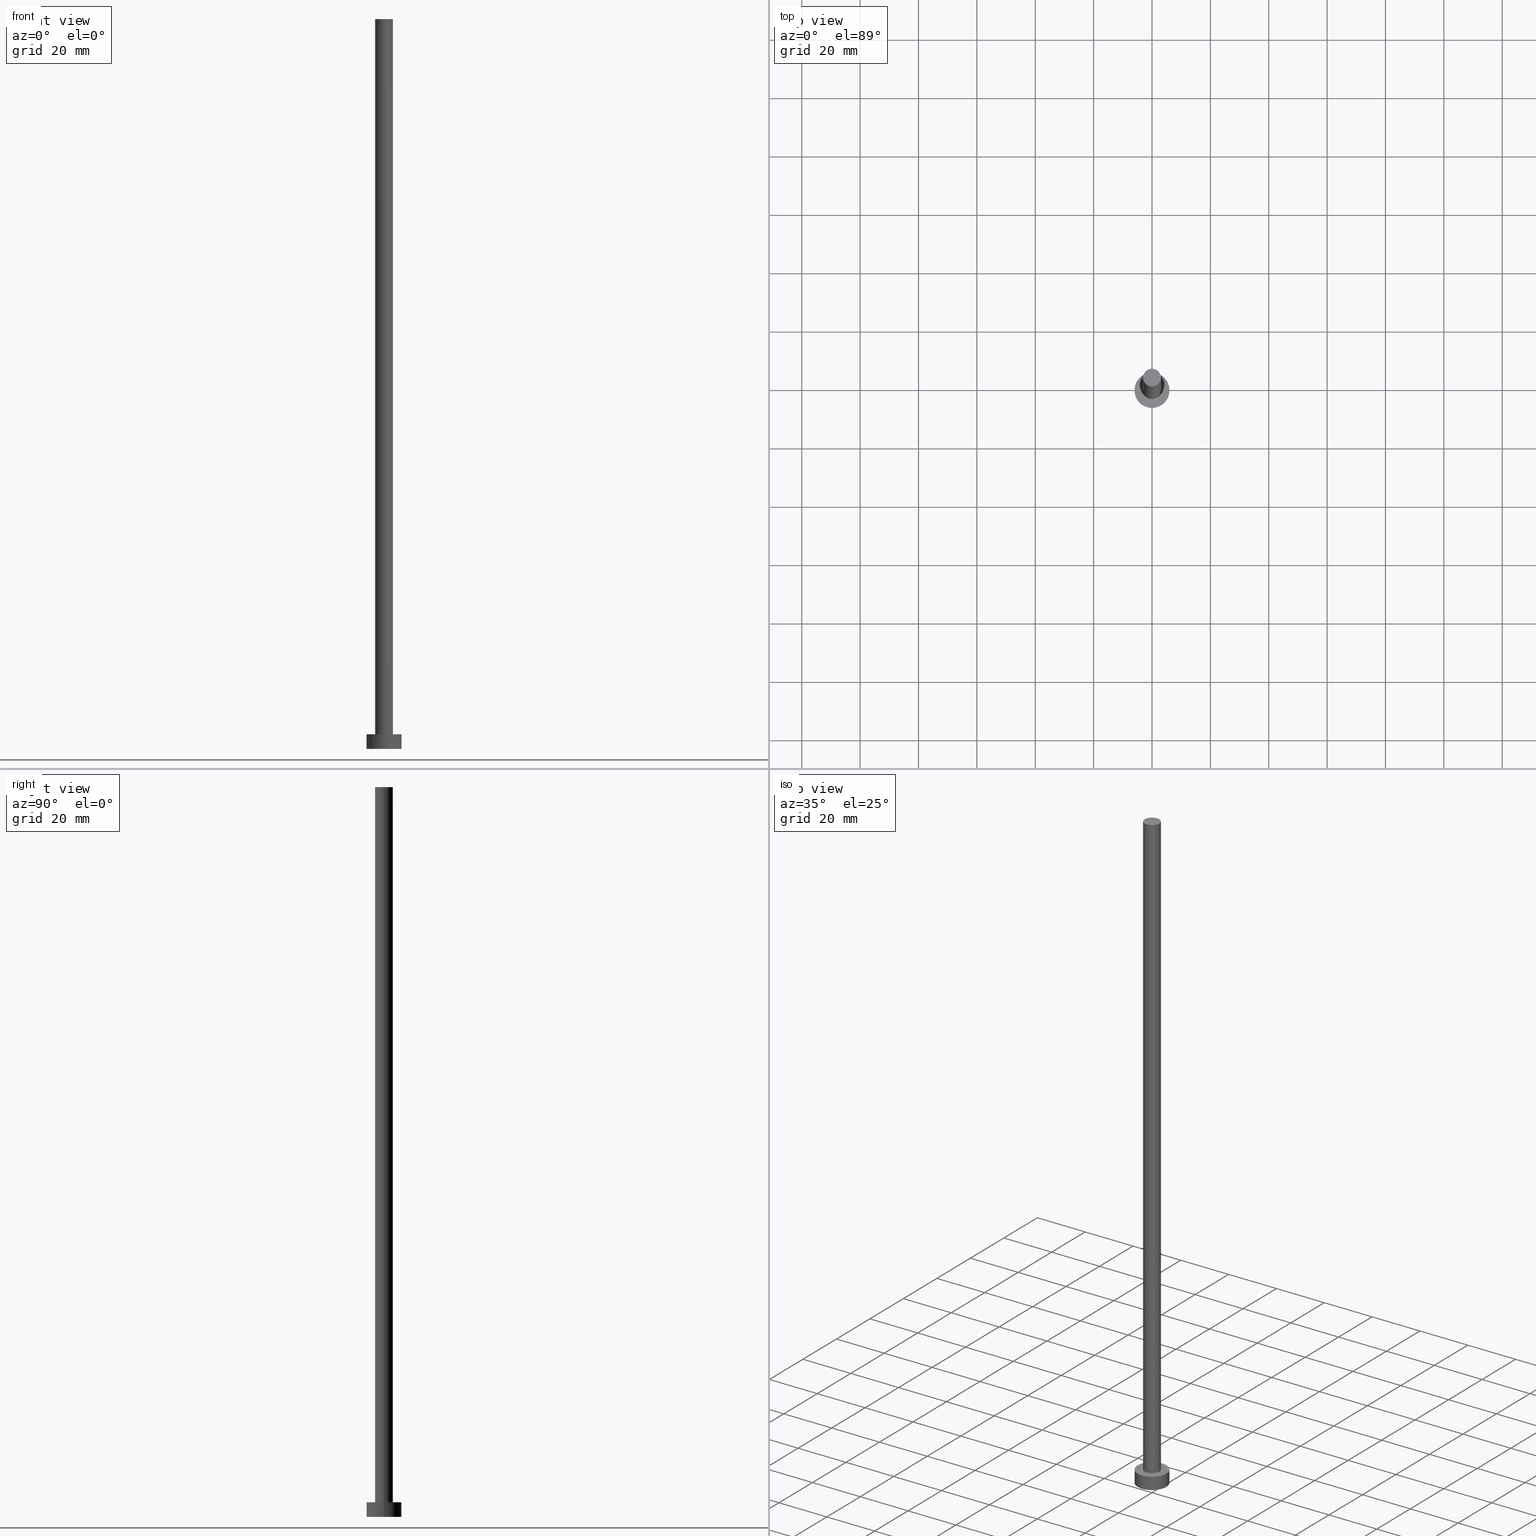
[diagram: canonical four-view strip — front | top / right | iso, engineering-drawing reading convention]
A machine part, canonical four-view strip (front | top / right | iso — engineering-drawing reading convention). The complete STEP part file that produces these views, byte-faithful:
ISO-10303-21;
HEADER;
FILE_DESCRIPTION (( 'STEP AP203' ),
    '1' );
FILE_NAME ('0f8e.STEP',
    '2023-05-24T12:27:42',
    ( '' ),
    ( '' ),
    'SwSTEP 2.0',
    'SolidWorks 2019',
    '' );
FILE_SCHEMA (( 'CONFIG_CONTROL_DESIGN' ));
ENDSEC;

DATA;
#1 = ORIENTED_EDGE ( 'NONE', *, *, #105, .T. ) ;
#2 = PERSON_AND_ORGANIZATION ( #18, #16 ) ;
#3 = AXIS2_PLACEMENT_3D ( 'NONE', #33, #232, #251 ) ;
#4 = APPROVAL ( #125, 'NEUR�EN�' ) ;
#5 = DATE_AND_TIME ( #74, #136 ) ;
#6 = EDGE_LOOP ( 'NONE', ( #236, #47, #102, #163 ) ) ;
#7 = VERTEX_POINT ( 'NONE', #84 ) ;
#8 = CC_DESIGN_PERSON_AND_ORGANIZATION_ASSIGNMENT ( #145, #160, ( #63 ) ) ;
#9 = CIRCLE ( 'NONE', #66, 6.000000000000000888 ) ;
#10 = VERTEX_POINT ( 'NONE', #61 ) ;
#11 = ORIENTED_EDGE ( 'NONE', *, *, #77, .F. ) ;
#12 = APPROVAL_PERSON_ORGANIZATION ( #237, #4, #100 ) ;
#13 = DIRECTION ( 'NONE',  ( 0.000000000000000000, 0.000000000000000000, 1.000000000000000000 ) ) ;
#14 =( LENGTH_UNIT ( ) NAMED_UNIT ( * ) SI_UNIT ( .MILLI., .METRE. ) );
#15 = CARTESIAN_POINT ( 'NONE',  ( 0.000000000000000000, 0.000000000000000000, 0.000000000000000000 ) ) ;
#16 = ORGANIZATION ( 'NEUR�EN�', 'NEUR�EN�', '' ) ;
#17 = FACE_OUTER_BOUND ( 'NONE', #42, .T. ) ;
#18 = PERSON ( 'NEUR�EN�', 'NEUR�EN�', 'NEUR�EN�', ('NEUR�EN�'), ('NEUR�EN�'), ('NEUR�EN�') ) ;
#19 = CC_DESIGN_DATE_AND_TIME_ASSIGNMENT ( #142, #213, ( #98 ) ) ;
#20 = DATE_AND_TIME ( #192, #41 ) ;
#21 = CC_DESIGN_APPROVAL ( #69, ( #63 ) ) ;
#22 = APPROVAL_STATUS ( 'not_yet_approved' ) ;
#23 = PERSON_AND_ORGANIZATION ( #18, #16 ) ;
#24 = PERSON_AND_ORGANIZATION ( #18, #16 ) ;
#25 = CARTESIAN_POINT ( 'NONE',  ( 0.000000000000000000, 0.000000000000000000, 250.0000000000000000 ) ) ;
#26 = PRODUCT_DEFINITION_SHAPE ( 'NONE', 'NONE',  #90 ) ;
#27 = CARTESIAN_POINT ( 'NONE',  ( 3.049999999999999822, 3.735172737399427146E-16, 250.0000000000000000 ) ) ;
#28 = AXIS2_PLACEMENT_3D ( 'NONE', #15, #53, #247 ) ;
#29 = DIRECTION ( 'NONE',  ( 1.000000000000000000, 0.000000000000000000, 0.000000000000000000 ) ) ;
#30 = EDGE_LOOP ( 'NONE', ( #62, #152 ) ) ;
#31 = DIRECTION ( 'NONE',  ( 0.000000000000000000, 0.000000000000000000, 1.000000000000000000 ) ) ;
#32 = CARTESIAN_POINT ( 'NONE',  ( -3.049999999999999822, 0.000000000000000000, 250.0000000000000000 ) ) ;
#33 = CARTESIAN_POINT ( 'NONE',  ( 0.000000000000000000, 0.000000000000000000, 5.000000000000000000 ) ) ;
#34 = DIRECTION ( 'NONE',  ( -0.000000000000000000, -0.000000000000000000, -1.000000000000000000 ) ) ;
#35 = FACE_OUTER_BOUND ( 'NONE', #82, .T. ) ;
#36 = EDGE_CURVE ( 'NONE', #200, #39, #133, .T. ) ;
#37 = APPLICATION_CONTEXT ( 'configuration controlled 3d designs of mechanical parts and assemblies' ) ;
#38 = PERSON_AND_ORGANIZATION ( #18, #16 ) ;
#39 = VERTEX_POINT ( 'NONE', #167 ) ;
#40 = APPLICATION_PROTOCOL_DEFINITION ( 'international standard', 'config_control_design', 1994, #126 ) ;
#41 = LOCAL_TIME ( 14, 27, 42.00000000000000000, #76 ) ;
#42 = EDGE_LOOP ( 'NONE', ( #186, #165 ) ) ;
#43 = ADVANCED_FACE ( 'NONE', ( #164 ), #243, .T. ) ;
#44 = CARTESIAN_POINT ( 'NONE',  ( 0.000000000000000000, 0.000000000000000000, 0.000000000000000000 ) ) ;
#45 = DIRECTION ( 'NONE',  ( 1.000000000000000000, 0.000000000000000000, -0.000000000000000000 ) ) ;
#46 = CC_DESIGN_PERSON_AND_ORGANIZATION_ASSIGNMENT ( #38, #252, ( #80 ) ) ;
#47 = ORIENTED_EDGE ( 'NONE', *, *, #151, .F. ) ;
#48 = ORIENTED_EDGE ( 'NONE', *, *, #59, .T. ) ;
#49 = LINE ( 'NONE', #189, #109 ) ;
#50 = DIRECTION ( 'NONE',  ( -1.000000000000000000, 0.000000000000000000, 0.000000000000000000 ) ) ;
#51 = CYLINDRICAL_SURFACE ( 'NONE', #171, 6.000000000000000888 ) ;
#52 = CC_DESIGN_APPROVAL ( #246, ( #98 ) ) ;
#53 = DIRECTION ( 'NONE',  ( 0.000000000000000000, 0.000000000000000000, 1.000000000000000000 ) ) ;
#54 = CALENDAR_DATE ( 2023, 24, 5 ) ;
#55 = COORDINATED_UNIVERSAL_TIME_OFFSET ( 1, 0, .AHEAD. ) ;
#56 = APPROVAL_ROLE ( '' ) ;
#57 = UNCERTAINTY_MEASURE_WITH_UNIT (LENGTH_MEASURE( 1.000000000000000082E-05 ), #14, 'distance_accuracy_value', 'NONE');
#58 = VERTEX_POINT ( 'NONE', #199 ) ;
#59 = EDGE_CURVE ( 'NONE', #58, #214, #75, .T. ) ;
#60 = EDGE_LOOP ( 'NONE', ( #11, #127, #222, #132 ) ) ;
#61 = CARTESIAN_POINT ( 'NONE',  ( -3.049999999999999822, 0.000000000000000000, 5.000000000000000000 ) ) ;
#62 = ORIENTED_EDGE ( 'NONE', *, *, #151, .T. ) ;
#63 = PRODUCT_DEFINITION_FORMATION_WITH_SPECIFIED_SOURCE ( 'LIBOVOLN�', '', #80, .NOT_KNOWN. ) ;
#64 = ADVANCED_BREP_SHAPE_REPRESENTATION ( '0f8e', ( #85, #131 ), #206 ) ;
#65 = DIRECTION ( 'NONE',  ( -0.000000000000000000, -0.000000000000000000, -1.000000000000000000 ) ) ;
#66 = AXIS2_PLACEMENT_3D ( 'NONE', #202, #240, #29 ) ;
#67 = DIRECTION ( 'NONE',  ( 0.000000000000000000, 0.000000000000000000, 1.000000000000000000 ) ) ;
#68 = DIRECTION ( 'NONE',  ( -0.000000000000000000, -0.000000000000000000, -1.000000000000000000 ) ) ;
#69 = APPROVAL ( #79, 'NEUR�EN�' ) ;
#70 = CARTESIAN_POINT ( 'NONE',  ( 6.000000000000000888, 7.347880794884120722E-16, 0.000000000000000000 ) ) ;
#71 = CARTESIAN_POINT ( 'NONE',  ( 3.049999999999999822, 3.735172737399427146E-16, 250.0000000000000000 ) ) ;
#72 = CC_DESIGN_PERSON_AND_ORGANIZATION_ASSIGNMENT ( #23, #123, ( #63 ) ) ;
#73 = CARTESIAN_POINT ( 'NONE',  ( 0.000000000000000000, 0.000000000000000000, 250.0000000000000000 ) ) ;
#74 = CALENDAR_DATE ( 2023, 24, 5 ) ;
#75 = CIRCLE ( 'NONE', #254, 6.000000000000000888 ) ;
#76 = COORDINATED_UNIVERSAL_TIME_OFFSET ( 1, 0, .AHEAD. ) ;
#77 = EDGE_CURVE ( 'NONE', #200, #150, #106, .T. ) ;
#78 = SECURITY_CLASSIFICATION_LEVEL ( 'unclassified' ) ;
#79 = APPROVAL_STATUS ( 'not_yet_approved' ) ;
#80 = PRODUCT ( '0f8e', '0f8e', '', ( #124 ) ) ;
#81 = ADVANCED_FACE ( 'NONE', ( #112 ), #187, .T. ) ;
#82 = EDGE_LOOP ( 'NONE', ( #111, #226, #107, #48 ) ) ;
#83 = AXIS2_PLACEMENT_3D ( 'NONE', #244, #149, #110 ) ;
#84 = CARTESIAN_POINT ( 'NONE',  ( 6.000000000000000888, 7.347880794884120722E-16, 5.000000000000000000 ) ) ;
#85 = MANIFOLD_SOLID_BREP ( 'P�idat vysunut�m3', #241 ) ;
#86 = CARTESIAN_POINT ( 'NONE',  ( 0.000000000000000000, 0.000000000000000000, 250.0000000000000000 ) ) ;
#87 = ORIENTED_EDGE ( 'NONE', *, *, #185, .F. ) ;
#88 = APPLICATION_PROTOCOL_DEFINITION ( 'international standard', 'config_control_design', 1994, #37 ) ;
#89 = VECTOR ( 'NONE', #65, 1000.000000000000000 ) ;
#90 = PRODUCT_DEFINITION ( 'NEZN�M�', '', #63, #253 ) ;
#91 = CARTESIAN_POINT ( 'NONE',  ( 0.000000000000000000, 0.000000000000000000, 5.000000000000000000 ) ) ;
#92 = CARTESIAN_POINT ( 'NONE',  ( 0.000000000000000000, 0.000000000000000000, 0.000000000000000000 ) ) ;
#93 = AXIS2_PLACEMENT_3D ( 'NONE', #170, #188, #190 ) ;
#94 = PLANE ( 'NONE',  #245 ) ;
#95 = ADVANCED_FACE ( 'NONE', ( #128, #108 ), #162, .T. ) ;
#96 = DIRECTION ( 'NONE',  ( 0.000000000000000000, 0.000000000000000000, 1.000000000000000000 ) ) ;
#97 = DATE_AND_TIME ( #144, #194 ) ;
#98 = SECURITY_CLASSIFICATION ( '', '', #78 ) ;
#99 = EDGE_LOOP ( 'NONE', ( #239, #1, #203, #87 ) ) ;
#100 = APPROVAL_ROLE ( '' ) ;
#101 = EDGE_CURVE ( 'NONE', #146, #7, #9, .T. ) ;
#102 = ORIENTED_EDGE ( 'NONE', *, *, #180, .T. ) ;
#103 = DIRECTION ( 'NONE',  ( 0.000000000000000000, 0.000000000000000000, 1.000000000000000000 ) ) ;
#104 = PERSON_AND_ORGANIZATION_ROLE ( 'classification_officer' ) ;
#105 = EDGE_CURVE ( 'NONE', #7, #214, #184, .T. ) ;
#106 = CIRCLE ( 'NONE', #179, 3.049999999999999822 ) ;
#107 = ORIENTED_EDGE ( 'NONE', *, *, #185, .T. ) ;
#108 = FACE_OUTER_BOUND ( 'NONE', #242, .T. ) ;
#109 = VECTOR ( 'NONE', #114, 1000.000000000000000 ) ;
#110 = DIRECTION ( 'NONE',  ( -1.000000000000000000, 0.000000000000000000, 0.000000000000000000 ) ) ;
#111 = ORIENTED_EDGE ( 'NONE', *, *, #105, .F. ) ;
#112 = FACE_OUTER_BOUND ( 'NONE', #30, .T. ) ;
#113 = ADVANCED_FACE ( 'NONE', ( #17 ), #94, .F. ) ;
#114 = DIRECTION ( 'NONE',  ( -0.000000000000000000, -0.000000000000000000, -1.000000000000000000 ) ) ;
#115 = CIRCLE ( 'NONE', #217, 3.049999999999999822 ) ;
#116 = CARTESIAN_POINT ( 'NONE',  ( 6.000000000000000888, 7.347880794884120722E-16, 5.000000000000000000 ) ) ;
#117 = CYLINDRICAL_SURFACE ( 'NONE', #93, 6.000000000000000888 ) ;
#118 = CIRCLE ( 'NONE', #28, 6.000000000000000888 ) ;
#119 = DIRECTION ( 'NONE',  ( 1.000000000000000000, 0.000000000000000000, -0.000000000000000000 ) ) ;
#120 = CALENDAR_DATE ( 2023, 24, 5 ) ;
#121 = ORIENTED_EDGE ( 'NONE', *, *, #101, .T. ) ;
#122 = CC_DESIGN_PERSON_AND_ORGANIZATION_ASSIGNMENT ( #24, #157, ( #90 ) ) ;
#123 = PERSON_AND_ORGANIZATION_ROLE ( 'creator' ) ;
#124 = MECHANICAL_CONTEXT ( 'NONE', #37, 'mechanical' ) ;
#125 = APPROVAL_STATUS ( 'not_yet_approved' ) ;
#126 = APPLICATION_CONTEXT ( 'configuration controlled 3d designs of mechanical parts and assemblies' ) ;
#127 = ORIENTED_EDGE ( 'NONE', *, *, #36, .T. ) ;
#128 = FACE_BOUND ( 'NONE', #182, .T. ) ;
#129 = DIRECTION ( 'NONE',  ( 0.000000000000000000, 0.000000000000000000, 1.000000000000000000 ) ) ;
#130 = APPROVAL_PERSON_ORGANIZATION ( #2, #69, #56 ) ;
#131 = AXIS2_PLACEMENT_3D ( 'NONE', #161, #103, #197 ) ;
#132 = ORIENTED_EDGE ( 'NONE', *, *, #180, .F. ) ;
#133 = LINE ( 'NONE', #27, #89 ) ;
#134 = EDGE_CURVE ( 'NONE', #10, #39, #141, .T. ) ;
#135 = FACE_OUTER_BOUND ( 'NONE', #99, .T. ) ;
#136 = LOCAL_TIME ( 14, 27, 42.00000000000000000, #177 ) ;
#137 =( NAMED_UNIT ( * ) PLANE_ANGLE_UNIT ( ) SI_UNIT ( $, .RADIAN. ) );
#138 = VECTOR ( 'NONE', #228, 1000.000000000000000 ) ;
#139 = DIRECTION ( 'NONE',  ( -1.000000000000000000, 0.000000000000000000, 0.000000000000000000 ) ) ;
#140 = LOCAL_TIME ( 14, 27, 42.00000000000000000, #218 ) ;
#141 = CIRCLE ( 'NONE', #155, 3.049999999999999822 ) ;
#142 = DATE_AND_TIME ( #54, #140 ) ;
#143 = SHAPE_DEFINITION_REPRESENTATION ( #26, #64 ) ;
#144 = CALENDAR_DATE ( 2023, 24, 5 ) ;
#145 = PERSON_AND_ORGANIZATION ( #18, #16 ) ;
#146 = VERTEX_POINT ( 'NONE', #154 ) ;
#147 = DIRECTION ( 'NONE',  ( 1.000000000000000000, 0.000000000000000000, 0.000000000000000000 ) ) ;
#148 = EDGE_CURVE ( 'NONE', #7, #146, #183, .T. ) ;
#149 = DIRECTION ( 'NONE',  ( -0.000000000000000000, -0.000000000000000000, -1.000000000000000000 ) ) ;
#150 = VERTEX_POINT ( 'NONE', #32 ) ;
#151 = EDGE_CURVE ( 'NONE', #150, #200, #115, .T. ) ;
#152 = ORIENTED_EDGE ( 'NONE', *, *, #77, .T. ) ;
#153 = CARTESIAN_POINT ( 'NONE',  ( 0.000000000000000000, 0.000000000000000000, 5.000000000000000000 ) ) ;
#154 = CARTESIAN_POINT ( 'NONE',  ( -6.000000000000000888, 0.000000000000000000, 5.000000000000000000 ) ) ;
#155 = AXIS2_PLACEMENT_3D ( 'NONE', #172, #96, #208 ) ;
#156 = DIRECTION ( 'NONE',  ( 0.000000000000000000, 0.000000000000000000, 1.000000000000000000 ) ) ;
#157 = PERSON_AND_ORGANIZATION_ROLE ( 'creator' ) ;
#158 = ADVANCED_FACE ( 'NONE', ( #169 ), #248, .T. ) ;
#159 = APPROVAL_DATE_TIME ( #235, #69 ) ;
#160 = PERSON_AND_ORGANIZATION_ROLE ( 'design_supplier' ) ;
#161 = CARTESIAN_POINT ( 'NONE',  ( 0.000000000000000000, 0.000000000000000000, 0.000000000000000000 ) ) ;
#162 = PLANE ( 'NONE',  #221 ) ;
#163 = ORIENTED_EDGE ( 'NONE', *, *, #134, .T. ) ;
#164 = FACE_OUTER_BOUND ( 'NONE', #60, .T. ) ;
#165 = ORIENTED_EDGE ( 'NONE', *, *, #201, .F. ) ;
#166 = PRODUCT_RELATED_PRODUCT_CATEGORY ( 'detail', '', ( #80 ) ) ;
#167 = CARTESIAN_POINT ( 'NONE',  ( 3.049999999999999822, 3.735172737399427146E-16, 5.000000000000000000 ) ) ;
#168 = APPROVAL_PERSON_ORGANIZATION ( #219, #246, #176 ) ;
#169 = FACE_OUTER_BOUND ( 'NONE', #6, .T. ) ;
#170 = CARTESIAN_POINT ( 'NONE',  ( 0.000000000000000000, 0.000000000000000000, 5.000000000000000000 ) ) ;
#171 = AXIS2_PLACEMENT_3D ( 'NONE', #91, #68, #50 ) ;
#172 = CARTESIAN_POINT ( 'NONE',  ( 0.000000000000000000, 0.000000000000000000, 5.000000000000000000 ) ) ;
#173 = CARTESIAN_POINT ( 'NONE',  ( -6.000000000000000888, 0.000000000000000000, 5.000000000000000000 ) ) ;
#174 = PERSON_AND_ORGANIZATION ( #18, #16 ) ;
#175 = ORIENTED_EDGE ( 'NONE', *, *, #207, .F. ) ;
#176 = APPROVAL_ROLE ( '' ) ;
#177 = COORDINATED_UNIVERSAL_TIME_OFFSET ( 1, 0, .AHEAD. ) ;
#178 = CC_DESIGN_APPROVAL ( #4, ( #90 ) ) ;
#179 = AXIS2_PLACEMENT_3D ( 'NONE', #86, #31, #147 ) ;
#180 = EDGE_CURVE ( 'NONE', #150, #10, #49, .T. ) ;
#181 = CARTESIAN_POINT ( 'NONE',  ( 0.000000000000000000, 0.000000000000000000, 5.000000000000000000 ) ) ;
#182 = EDGE_LOOP ( 'NONE', ( #193, #175 ) ) ;
#183 = CIRCLE ( 'NONE', #234, 6.000000000000000888 ) ;
#184 = LINE ( 'NONE', #116, #138 ) ;
#185 = EDGE_CURVE ( 'NONE', #146, #58, #209, .T. ) ;
#186 = ORIENTED_EDGE ( 'NONE', *, *, #59, .F. ) ;
#187 = PLANE ( 'NONE',  #229 ) ;
#188 = DIRECTION ( 'NONE',  ( -0.000000000000000000, -0.000000000000000000, -1.000000000000000000 ) ) ;
#189 = CARTESIAN_POINT ( 'NONE',  ( -3.049999999999999822, 0.000000000000000000, 250.0000000000000000 ) ) ;
#190 = DIRECTION ( 'NONE',  ( -1.000000000000000000, 0.000000000000000000, 0.000000000000000000 ) ) ;
#191 = DIRECTION ( 'NONE',  ( -0.000000000000000000, -0.000000000000000000, -1.000000000000000000 ) ) ;
#192 = CALENDAR_DATE ( 2023, 24, 5 ) ;
#193 = ORIENTED_EDGE ( 'NONE', *, *, #134, .F. ) ;
#194 = LOCAL_TIME ( 14, 27, 42.00000000000000000, #195 ) ;
#195 = COORDINATED_UNIVERSAL_TIME_OFFSET ( 1, 0, .AHEAD. ) ;
#196 = APPROVAL_DATE_TIME ( #5, #4 ) ;
#197 = DIRECTION ( 'NONE',  ( 1.000000000000000000, 0.000000000000000000, 0.000000000000000000 ) ) ;
#198 = CC_DESIGN_SECURITY_CLASSIFICATION ( #98, ( #63 ) ) ;
#199 = CARTESIAN_POINT ( 'NONE',  ( -6.000000000000000888, 0.000000000000000000, 0.000000000000000000 ) ) ;
#200 = VERTEX_POINT ( 'NONE', #71 ) ;
#201 = EDGE_CURVE ( 'NONE', #214, #58, #118, .T. ) ;
#202 = CARTESIAN_POINT ( 'NONE',  ( 0.000000000000000000, 0.000000000000000000, 5.000000000000000000 ) ) ;
#203 = ORIENTED_EDGE ( 'NONE', *, *, #201, .T. ) ;
#204 = DIRECTION ( 'NONE',  ( 0.000000000000000000, 0.000000000000000000, 1.000000000000000000 ) ) ;
#205 = DIRECTION ( 'NONE',  ( 1.000000000000000000, 0.000000000000000000, 0.000000000000000000 ) ) ;
#206 =( GEOMETRIC_REPRESENTATION_CONTEXT ( 3 ) GLOBAL_UNCERTAINTY_ASSIGNED_CONTEXT ( ( #57 ) ) GLOBAL_UNIT_ASSIGNED_CONTEXT ( ( #14, #137, #212 ) ) REPRESENTATION_CONTEXT ( 'NONE', 'WORKASPACE' ) );
#207 = EDGE_CURVE ( 'NONE', #39, #10, #233, .T. ) ;
#208 = DIRECTION ( 'NONE',  ( 1.000000000000000000, 0.000000000000000000, 0.000000000000000000 ) ) ;
#209 = LINE ( 'NONE', #173, #224 ) ;
#210 = CC_DESIGN_DATE_AND_TIME_ASSIGNMENT ( #97, #238, ( #90 ) ) ;
#211 = LOCAL_TIME ( 14, 27, 42.00000000000000000, #55 ) ;
#212 =( NAMED_UNIT ( * ) SI_UNIT ( $, .STERADIAN. ) SOLID_ANGLE_UNIT ( ) );
#213 = DATE_TIME_ROLE ( 'classification_date' ) ;
#214 = VERTEX_POINT ( 'NONE', #70 ) ;
#215 = AXIS2_PLACEMENT_3D ( 'NONE', #227, #191, #139 ) ;
#216 = CC_DESIGN_PERSON_AND_ORGANIZATION_ASSIGNMENT ( #174, #104, ( #98 ) ) ;
#217 = AXIS2_PLACEMENT_3D ( 'NONE', #73, #156, #231 ) ;
#218 = COORDINATED_UNIVERSAL_TIME_OFFSET ( 1, 0, .AHEAD. ) ;
#219 = PERSON_AND_ORGANIZATION ( #18, #16 ) ;
#220 = ORIENTED_EDGE ( 'NONE', *, *, #148, .T. ) ;
#221 = AXIS2_PLACEMENT_3D ( 'NONE', #181, #129, #45 ) ;
#222 = ORIENTED_EDGE ( 'NONE', *, *, #207, .T. ) ;
#223 = DIRECTION ( 'NONE',  ( 1.000000000000000000, 0.000000000000000000, -0.000000000000000000 ) ) ;
#224 = VECTOR ( 'NONE', #34, 1000.000000000000000 ) ;
#225 = DIRECTION ( 'NONE',  ( 1.000000000000000000, 0.000000000000000000, 0.000000000000000000 ) ) ;
#226 = ORIENTED_EDGE ( 'NONE', *, *, #101, .F. ) ;
#227 = CARTESIAN_POINT ( 'NONE',  ( 0.000000000000000000, 0.000000000000000000, 250.0000000000000000 ) ) ;
#228 = DIRECTION ( 'NONE',  ( -0.000000000000000000, -0.000000000000000000, -1.000000000000000000 ) ) ;
#229 = AXIS2_PLACEMENT_3D ( 'NONE', #25, #13, #223 ) ;
#230 = ADVANCED_FACE ( 'NONE', ( #135 ), #51, .T. ) ;
#231 = DIRECTION ( 'NONE',  ( 1.000000000000000000, 0.000000000000000000, 0.000000000000000000 ) ) ;
#232 = DIRECTION ( 'NONE',  ( 0.000000000000000000, 0.000000000000000000, 1.000000000000000000 ) ) ;
#233 = CIRCLE ( 'NONE', #3, 3.049999999999999822 ) ;
#234 = AXIS2_PLACEMENT_3D ( 'NONE', #153, #250, #205 ) ;
#235 = DATE_AND_TIME ( #120, #211 ) ;
#236 = ORIENTED_EDGE ( 'NONE', *, *, #36, .F. ) ;
#237 = PERSON_AND_ORGANIZATION ( #18, #16 ) ;
#238 = DATE_TIME_ROLE ( 'creation_date' ) ;
#239 = ORIENTED_EDGE ( 'NONE', *, *, #148, .F. ) ;
#240 = DIRECTION ( 'NONE',  ( 0.000000000000000000, 0.000000000000000000, 1.000000000000000000 ) ) ;
#241 = CLOSED_SHELL ( 'NONE', ( #43, #230, #249, #95, #113, #158, #81 ) ) ;
#242 = EDGE_LOOP ( 'NONE', ( #121, #220 ) ) ;
#243 = CYLINDRICAL_SURFACE ( 'NONE', #83, 3.049999999999999822 ) ;
#244 = CARTESIAN_POINT ( 'NONE',  ( 0.000000000000000000, 0.000000000000000000, 250.0000000000000000 ) ) ;
#245 = AXIS2_PLACEMENT_3D ( 'NONE', #92, #67, #119 ) ;
#246 = APPROVAL ( #22, 'NEUR�EN�' ) ;
#247 = DIRECTION ( 'NONE',  ( 1.000000000000000000, 0.000000000000000000, 0.000000000000000000 ) ) ;
#248 = CYLINDRICAL_SURFACE ( 'NONE', #215, 3.049999999999999822 ) ;
#249 = ADVANCED_FACE ( 'NONE', ( #35 ), #117, .T. ) ;
#250 = DIRECTION ( 'NONE',  ( 0.000000000000000000, 0.000000000000000000, 1.000000000000000000 ) ) ;
#251 = DIRECTION ( 'NONE',  ( 1.000000000000000000, 0.000000000000000000, 0.000000000000000000 ) ) ;
#252 = PERSON_AND_ORGANIZATION_ROLE ( 'design_owner' ) ;
#253 = DESIGN_CONTEXT ( 'detailed design', #126, 'design' ) ;
#254 = AXIS2_PLACEMENT_3D ( 'NONE', #44, #204, #225 ) ;
#255 = APPROVAL_DATE_TIME ( #20, #246 ) ;
ENDSEC;
END-ISO-10303-21;
